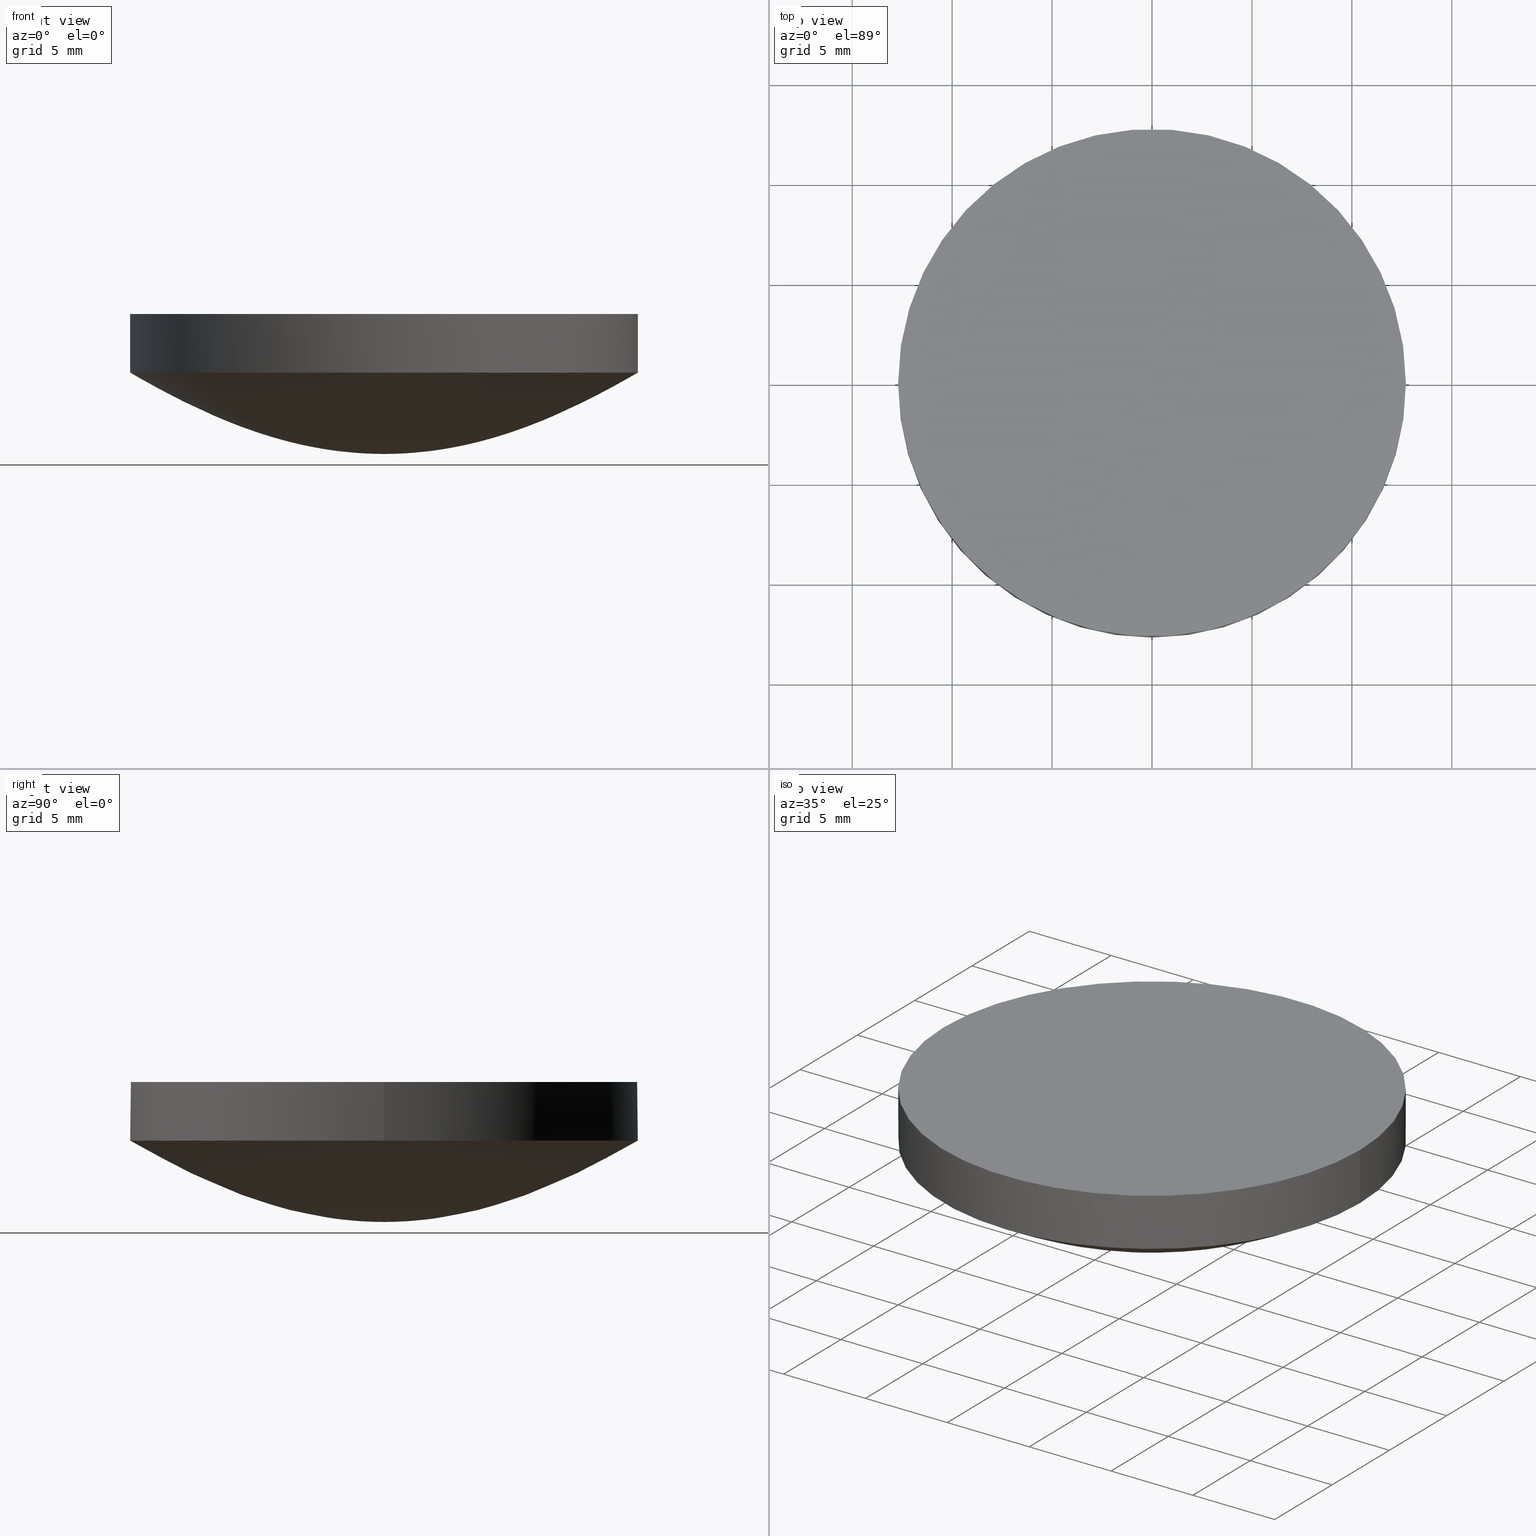
[diagram: canonical four-view strip — front | top / right | iso, engineering-drawing reading convention]
A machine part, canonical four-view strip (front | top / right | iso — engineering-drawing reading convention). The complete STEP part file that produces these views, byte-faithful:
ISO-10303-21;
HEADER;
FILE_DESCRIPTION (( 'STEP AP203' ),
    '1' );
FILE_NAME ('140006.STEP',
    '2021-03-15T05:15:34',
    ( '' ),
    ( '' ),
    'SwSTEP 2.0',
    'SolidWorks 2020',
    '' );
FILE_SCHEMA (( 'CONFIG_CONTROL_DESIGN' ));
ENDSEC;

DATA;
#1 = CARTESIAN_POINT ( 'NONE',  ( 0.000000000000000000, 12.00479254064729950, 3.667064022752589914 ) ) ;
#2 = AXIS2_PLACEMENT_3D ( 'NONE', #307, #428, #301 ) ;
#3 = CARTESIAN_POINT ( 'NONE',  ( 0.000000000000000000, 3.533405957217320648, 0.3344205416368840611 ) ) ;
#4 = CARTESIAN_POINT ( 'NONE',  ( 0.000000000000000000, 11.12882161848590101, 3.181104374964820014 ) ) ;
#5 = CARTESIAN_POINT ( 'NONE',  ( 7.594301245238770370, -1.395050506761360116E-15, 1.533470957631930087 ) ) ;
#6 = CARTESIAN_POINT ( 'NONE',  ( -12.00479254064729950, 12.00479254064729950, 3.667064022752589914 ) ) ;
#7 = CARTESIAN_POINT ( 'NONE',  ( 6.711633172175790030, -6.711633172175790030, 1.203886913266370096 ) ) ;
#8 = CARTESIAN_POINT ( 'NONE',  ( -9.181737509768350236, 5.622192725974499850E-16, 2.214785189956430145 ) ) ;
#9 = CARTESIAN_POINT ( 'NONE',  ( -6.006055148341420846, 3.677648106459400720E-16, 0.9667882177834620228 ) ) ;
#10 = CARTESIAN_POINT ( 'NONE',  ( -6.711633172175790030, 4.109690040678139960E-16, 1.203886913266370096 ) ) ;
#11 = CARTESIAN_POINT ( 'NONE',  ( 0.000000000000000000, 0.2648328616955860082, 0.000000000000000000 ) ) ;
#12 = LINE ( 'NONE', #178, #349 ) ;
#13 = VERTEX_POINT ( 'NONE', #352 ) ;
#14 = ORIENTED_EDGE ( 'NONE', *, *, #214, .F. ) ;
#15 = CARTESIAN_POINT ( 'NONE',  ( -2.827385974584470052, 1.731274591864490094E-16, 0.2123206717078350014 ) ) ;
#16 = ORIENTED_EDGE ( 'NONE', *, *, #172, .F. ) ;
#17 = CARTESIAN_POINT ( 'NONE',  ( -1.191719837553290114E-16, -0.9731130954516921117, 0.01543048580902020225 ) ) ;
#18 = CARTESIAN_POINT ( 'NONE',  ( 0.000000000000000000, 4.417048690703129665, 0.5241299113884619887 ) ) ;
#19 = COORDINATED_UNIVERSAL_TIME_OFFSET ( 8, 0, .AHEAD. ) ;
#20 = CC_DESIGN_APPROVAL ( #251, ( #425 ) ) ;
#21 = VERTEX_POINT ( 'NONE', #272 ) ;
#22 = CARTESIAN_POINT ( 'NONE',  ( -6.273697908756820634E-16, -5.122863108877440119, 0.7050934592128860201 ) ) ;
#23 = COORDINATED_UNIVERSAL_TIME_OFFSET ( 8, 0, .AHEAD. ) ;
#24 = DIRECTION ( 'NONE',  ( 6.993530863780509846E-17, 4.890947394265059749E-33, -1.000000000000000000 ) ) ;
#25 = CARTESIAN_POINT ( 'NONE',  ( 6.711633172175790030, -1.232907012203440065E-15, 1.203886913266370096 ) ) ;
#26 = CARTESIAN_POINT ( 'NONE',  ( -3.243267163845330030E-17, -0.2648328616955860082, 0.000000000000000000 ) ) ;
#27 = DATE_TIME_ROLE ( 'creation_date' ) ;
#28 = CARTESIAN_POINT ( 'NONE',  ( -1.555301434917141588E-15, -12.70000000000000462, 4.070440747888570243 ) ) ;
#29 = CARTESIAN_POINT ( 'NONE',  ( -8.219380081356279919E-16, -6.711633172175790030, 1.203886913266370096 ) ) ;
#30 = CARTESIAN_POINT ( 'NONE',  ( 9.886807867845659459, 9.886807867845650577, 2.551412349714330396 ) ) ;
#31 = APPROVAL_PERSON_ORGANIZATION ( #313, #177, #480 ) ;
#32 = DIRECTION ( 'NONE',  ( 1.000000000000000000, 0.000000000000000000, 6.829619984160658046E-17 ) ) ;
#33 = CARTESIAN_POINT ( 'NONE',  ( 0.000000000000000000, 6.006055148341420846, 0.9667882177834620228 ) ) ;
#34 = CARTESIAN_POINT ( 'NONE',  ( 0.000000000000000000, 0.000000000000000000, 0.000000000000000000 ) ) ;
#35 = CARTESIAN_POINT ( 'NONE',  ( -12.00479254064729950, 7.350815379665869921E-16, 3.667064022752589914 ) ) ;
#36 = CARTESIAN_POINT ( 'NONE',  ( 0.000000000000000000, 3.533405957217320648, 0.3344205416368840611 ) ) ;
#37 = CARTESIAN_POINT ( 'NONE',  ( 0.000000000000000000, 1.855821823687519911, 0.08601257208149051814 ) ) ;
#38 = CARTESIAN_POINT ( 'NONE',  ( -1.191719837553290114E-16, -0.9731130954516921117, 0.01543048580902020225 ) ) ;
#39 = CARTESIAN_POINT ( 'NONE',  ( -6.711633172175790030, 4.109690040678139960E-16, 1.203886913266370096 ) ) ;
#40 = CARTESIAN_POINT ( 'NONE',  ( 11.12882161848590101, -2.044331366004090146E-15, 3.181104374964820014 ) ) ;
#41 = CARTESIAN_POINT ( 'NONE',  ( 0.000000000000000000, 7.594301245238770370, 1.533470957631930087 ) ) ;
#42 = ADVANCED_FACE ( 'NONE', ( #358 ), #117, .T. ) ;
#43 = CARTESIAN_POINT ( 'NONE',  ( -11.12882161848589924, -11.12882161848589924, 3.181104374964820014 ) ) ;
#44 = CARTESIAN_POINT ( 'NONE',  ( -2.272726256166720090E-16, -1.855821823687519911, 0.08601257208149051814 ) ) ;
#45 = CARTESIAN_POINT ( 'NONE',  ( 0.000000000000000000, 6.711633172175790030, 1.203886913266370096 ) ) ;
#46 = CARTESIAN_POINT ( 'NONE',  ( -1.124438545194899970E-15, -9.181737509768350236, 2.214785189956430145 ) ) ;
#47 = CARTESIAN_POINT ( 'NONE',  ( -8.219380081356279919E-16, -6.711633172175790030, 1.203886913266370096 ) ) ;
#48 = PRODUCT_RELATED_PRODUCT_CATEGORY ( 'detail', '', ( #406 ) ) ;
#49 = CARTESIAN_POINT ( 'NONE',  ( -8.299626648234200488, -8.299626648234200488, 1.822880464037990311 ) ) ;
#50 = CARTESIAN_POINT ( 'NONE',  ( -9.886807867845659459, -9.886807867845650577, 2.551412349714330396 ) ) ;
#51 = CARTESIAN_POINT ( 'NONE',  ( -0.2648328616955860082, 1.621633581922660085E-17, 0.000000000000000000 ) ) ;
#52 = CARTESIAN_POINT ( 'NONE',  ( 0.000000000000000000, 0.000000000000000000, 0.000000000000000000 ) ) ;
#53 = ORIENTED_EDGE ( 'NONE', *, *, #519, .T. ) ;
#54 =( GEOMETRIC_REPRESENTATION_CONTEXT ( 3 ) GLOBAL_UNCERTAINTY_ASSIGNED_CONTEXT ( ( #460 ) ) GLOBAL_UNIT_ASSIGNED_CONTEXT ( ( #260, #476, #387 ) ) REPRESENTATION_CONTEXT ( 'NONE', 'WORKASPACE' ) );
#55 = ORIENTED_EDGE ( 'NONE', *, *, #509, .T. ) ;
#56 = CARTESIAN_POINT ( 'NONE',  ( 3.533405957217320204, -3.533405957217320204, 0.3344205416368839501 ) ) ;
#57 = DIRECTION ( 'NONE',  ( 0.000000000000000000, 0.000000000000000000, 1.000000000000000000 ) ) ;
#58 = EDGE_LOOP ( 'NONE', ( #520, #55, #438, #217, #61 ) ) ;
#59 = CARTESIAN_POINT ( 'NONE',  ( -3.533405957217320204, -3.533405957217320204, 0.3344205416368839501 ) ) ;
#60 = CARTESIAN_POINT ( 'NONE',  ( -0.2648328616955859527, -0.2648328616955859527, 0.000000000000000000 ) ) ;
#61 = ORIENTED_EDGE ( 'NONE', *, *, #113, .F. ) ;
#62 = CARTESIAN_POINT ( 'NONE',  ( -1.855821823687519911, 1.855821823687519911, 0.08601257208149050426 ) ) ;
#63 = DATE_AND_TIME ( #150, #498 ) ;
#64 = B_SPLINE_CURVE_WITH_KNOTS ( 'NONE', 3,
 ( #536, #314, #486, #230, #151, #444, #68, #108, #311, #414, #241, #361, #451, #441, #38, #490, #112 ),
 .UNSPECIFIED., .F., .F.,
 ( 4, 1, 1, 1, 1, 1, 1, 1, 1, 1, 1, 1, 1, 1, 4 ),
 ( 0.000000000000000000, 0.1786505433435620072, 0.2225930362310299948, 0.3094249444054230080, 0.3523143596923489773, 0.4370447528922249969, 0.4788857308051759909, 0.5616114302726280538, 0.6024961518271300109, 0.6834766971770069865, 0.7235725209723830043, 0.8032027717589680371, 0.8427371987501770523, 0.9411358128706930337, 1.000000000000000000 ),
 .UNSPECIFIED. ) ;
#65 = DIRECTION ( 'NONE',  ( -6.993530863780509846E-17, -4.890947394265059749E-33, 1.000000000000000000 ) ) ;
#66 = CARTESIAN_POINT ( 'NONE',  ( 5.122863108877440119, -9.410546863135229472E-16, 0.7050934592128860201 ) ) ;
#67 = CALENDAR_DATE ( 2021, 15, 3 ) ;
#68 = CARTESIAN_POINT ( 'NONE',  ( -9.300336711742419180E-16, -7.594301245238770370, 1.533470957631930087 ) ) ;
#69 = CARTESIAN_POINT ( 'NONE',  ( 0.000000000000000000, 4.417048690703129665, 0.5241299113884619887 ) ) ;
#70 = CARTESIAN_POINT ( 'NONE',  ( 0.9731130954516928888, 0.9731130954516920006, 0.01543048580902020052 ) ) ;
#71 = CYLINDRICAL_SURFACE ( 'NONE', #523, 12.69999999999999929 ) ;
#72 = CARTESIAN_POINT ( 'NONE',  ( -7.594301245238770370, 4.650168355871209590E-16, 1.533470957631930087 ) ) ;
#73 = EDGE_CURVE ( 'NONE', #13, #524, #372, .T. ) ;
#74 = CARTESIAN_POINT ( 'NONE',  ( 0.000000000000000000, 0.000000000000000000, 0.000000000000000000 ) ) ;
#75 = LOCAL_TIME ( 13, 15, 34.00000000000000000, #19 ) ;
#76 = CARTESIAN_POINT ( 'NONE',  ( 12.69999999999999929, -2.332952152375710015E-15, 4.070440747888570243 ) ) ;
#77 = CARTESIAN_POINT ( 'NONE',  ( 4.417048690703129665, -8.113986811121390347E-16, 0.5241299113884619887 ) ) ;
#78 = CARTESIAN_POINT ( 'NONE',  ( -11.12882161848590101, 6.814437886680300486E-16, 3.181104374964820014 ) ) ;
#79 = CARTESIAN_POINT ( 'NONE',  ( 1.734723475976807094E-15, -1.345898117247522881E-15, 4.070440747888570243 ) ) ;
#80 = CARTESIAN_POINT ( 'NONE',  ( -4.327174295594380739E-16, -3.533405957217320648, 0.3344205416368840611 ) ) ;
#81 = CARTESIAN_POINT ( 'NONE',  ( 0.000000000000000000, 9.181737509768350236, 2.214785189956430145 ) ) ;
#82 = CARTESIAN_POINT ( 'NONE',  ( 9.181737509768350236, -1.686657817792350152E-15, 2.214785189956430145 ) ) ;
#83 = CARTESIAN_POINT ( 'NONE',  ( 0.000000000000000000, 11.12882161848590101, 3.181104374964820014 ) ) ;
#84 = CARTESIAN_POINT ( 'NONE',  ( -6.711633172175790030, 6.711633172175790030, 1.203886913266370096 ) ) ;
#85 = AXIS2_PLACEMENT_3D ( 'NONE', #408, #24, #32 ) ;
#86 = CARTESIAN_POINT ( 'NONE',  ( -1.210784760914209971E-15, -9.886807867845659459, 2.551412349714329952 ) ) ;
#87 = CARTESIAN_POINT ( 'NONE',  ( -9.886807867845659459, 6.053923804571030135E-16, 2.551412349714329952 ) ) ;
#88 = CARTESIAN_POINT ( 'NONE',  ( 1.855821823687519911, 1.855821823687519911, 0.08601257208149050426 ) ) ;
#89 = CARTESIAN_POINT ( 'NONE',  ( 0.000000000000000000, 6.006055148341420846, 0.9667882177834620228 ) ) ;
#90 = CARTESIAN_POINT ( 'NONE',  ( 9.181737509768350236, -9.181737509768350236, 2.214785189956430145 ) ) ;
#91 = CARTESIAN_POINT ( 'NONE',  ( 0.000000000000000000, 0.000000000000000000, 0.000000000000000000 ) ) ;
#92 = CARTESIAN_POINT ( 'NONE',  ( 2.827385974584470052, -2.827385974584470052, 0.2123206717078350014 ) ) ;
#93 = CARTESIAN_POINT ( 'NONE',  ( 0.000000000000000000, 0.000000000000000000, 0.000000000000000000 ) ) ;
#94 = VERTEX_POINT ( 'NONE', #28 ) ;
#95 = DIRECTION ( 'NONE',  ( 1.000000000000000000, 0.000000000000000000, -0.000000000000000000 ) ) ;
#96 = CARTESIAN_POINT ( 'NONE',  ( 0.000000000000000000, 0.000000000000000000, 0.000000000000000000 ) ) ;
#97 = CC_DESIGN_APPROVAL ( #177, ( #268 ) ) ;
#98 = ORIENTED_EDGE ( 'NONE', *, *, #484, .T. ) ;
#99 = PRODUCT_DEFINITION_SHAPE ( 'NONE', 'NONE',  #268 ) ;
#100 = CARTESIAN_POINT ( 'NONE',  ( -5.122863108877440119, 3.136848954378410317E-16, 0.7050934592128860201 ) ) ;
#101 = CARTESIAN_POINT ( 'NONE',  ( -0.9731130954516921117, 5.958599187766440708E-17, 0.01543048580902020225 ) ) ;
#102 = CARTESIAN_POINT ( 'NONE',  ( 0.000000000000000000, 0.000000000000000000, 0.000000000000000000 ) ) ;
#103 = CARTESIAN_POINT ( 'NONE',  ( -1.855821823687519911, -1.855821823687519911, 0.08601257208149050426 ) ) ;
#104 = APPROVAL_ROLE ( '' ) ;
#105 = CARTESIAN_POINT ( 'NONE',  ( 8.881784197001250351E-16, -8.881784197001250351E-16, 4.070440747888570243 ) ) ;
#106 = CARTESIAN_POINT ( 'NONE',  ( 0.000000000000000000, 0.9731130954516921117, 0.01543048580902020225 ) ) ;
#107 = CALENDAR_DATE ( 2021, 15, 3 ) ;
#108 = CARTESIAN_POINT ( 'NONE',  ( -8.219380081356279919E-16, -6.711633172175790030, 1.203886913266370096 ) ) ;
#109 = CARTESIAN_POINT ( 'NONE',  ( -6.273697908756820634E-16, -5.122863108877440119, 0.7050934592128860201 ) ) ;
#110 = CARTESIAN_POINT ( 'NONE',  ( -5.122863108877440119, -5.122863108877440119, 0.7050934592128860201 ) ) ;
#111 = CARTESIAN_POINT ( 'NONE',  ( 0.9731130954516920006, -0.9731130954516928888, 0.01543048580902020052 ) ) ;
#112 = CARTESIAN_POINT ( 'NONE',  ( 0.000000000000000000, 0.000000000000000000, 0.000000000000000000 ) ) ;
#113 = EDGE_CURVE ( 'NONE', #524, #21, #305, .T. ) ;
#114 = CARTESIAN_POINT ( 'NONE',  ( 0.000000000000000000, 8.299626648234200488, 1.822880464037990089 ) ) ;
#115 = CARTESIAN_POINT ( 'NONE',  ( -0.9731130954516920006, -0.9731130954516920006, 0.01543048580902020052 ) ) ;
#116 = CARTESIAN_POINT ( 'NONE',  ( 0.000000000000000000, 12.00479254064729950, 3.667064022752589914 ) ) ;
#117 = CYLINDRICAL_SURFACE ( 'NONE', #514, 12.69999999999999929 ) ;
#118 = CARTESIAN_POINT ( 'NONE',  ( -4.417048690703129665, -4.417048690703129665, 0.5241299113884619887 ) ) ;
#119 = CARTESIAN_POINT ( 'NONE',  ( 12.00479254064729950, 12.00479254064729950, 3.667064022752589914 ) ) ;
#120 = DATE_AND_TIME ( #67, #75 ) ;
#121 = ORGANIZATION ( 'δָ��', 'δָ��', '' ) ;
#122 = CC_DESIGN_SECURITY_CLASSIFICATION ( #425, ( #379 ) ) ;
#123 = CARTESIAN_POINT ( 'NONE',  ( -12.69999999999999929, 7.776507174585690191E-16, 4.070440747888570243 ) ) ;
#124 = CARTESIAN_POINT ( 'NONE',  ( 6.711633172175790030, -6.711633172175790030, 1.203886913266370096 ) ) ;
#125 = CARTESIAN_POINT ( 'NONE',  ( 12.69999999999999929, -2.332952152375710015E-15, 4.070440747888570243 ) ) ;
#126 = CARTESIAN_POINT ( 'NONE',  ( 0.000000000000000000, 9.886807867845659459, 2.551412349714329952 ) ) ;
#127 = CARTESIAN_POINT ( 'NONE',  ( 6.711633172175790030, 6.711633172175790030, 1.203886913266370096 ) ) ;
#128 = CARTESIAN_POINT ( 'NONE',  ( -9.886807867845659459, 9.886807867845659459, 2.551412349714330396 ) ) ;
#129 = CARTESIAN_POINT ( 'NONE',  ( 0.000000000000000000, 7.594301245238770370, 1.533470957631930087 ) ) ;
#130 = CARTESIAN_POINT ( 'NONE',  ( 0.000000000000000000, 0.000000000000000000, 0.000000000000000000 ) ) ;
#131 = CARTESIAN_POINT ( 'NONE',  ( -1.855821823687519911, -1.855821823687519911, 0.08601257208149050426 ) ) ;
#132 = CARTESIAN_POINT ( 'NONE',  ( -9.181737509768350236, 9.181737509768350236, 2.214785189956430145 ) ) ;
#133 = CARTESIAN_POINT ( 'NONE',  ( 6.006055148341419958, -6.006055148341419958, 0.9667882177834622448 ) ) ;
#134 = CARTESIAN_POINT ( 'NONE',  ( 0.000000000000000000, 8.299626648234200488, 1.822880464037990089 ) ) ;
#135 = CARTESIAN_POINT ( 'NONE',  ( 1.734723475976807094E-15, -1.345898117247522881E-15, 4.070440747888570243 ) ) ;
#136 = CARTESIAN_POINT ( 'NONE',  ( -0.9731130954516920006, 0.9731130954516920006, 0.01543048580902020052 ) ) ;
#137 = CARTESIAN_POINT ( 'NONE',  ( -3.851859888774471706E-31, 12.70000000000000284, 4.070440747888570243 ) ) ;
#138 = CARTESIAN_POINT ( 'NONE',  ( 0.000000000000000000, 0.2648328616955860082, 0.000000000000000000 ) ) ;
#139 = ORIENTED_EDGE ( 'NONE', *, *, #519, .F. ) ;
#140 = CARTESIAN_POINT ( 'NONE',  ( 12.70000000000000107, -8.881784197001250351E-16, 4.070440747888571131 ) ) ;
#141 = ORIENTED_EDGE ( 'NONE', *, *, #331, .F. ) ;
#142 = CC_DESIGN_PERSON_AND_ORGANIZATION_ASSIGNMENT ( #357, #496, ( #425 ) ) ;
#143 = CARTESIAN_POINT ( 'NONE',  ( 1.855821823687519911, 1.855821823687519911, 0.08601257208149050426 ) ) ;
#144 = CARTESIAN_POINT ( 'NONE',  ( 0.000000000000000000, 0.000000000000000000, 0.000000000000000000 ) ) ;
#145 = EDGE_LOOP ( 'NONE', ( #16, #262, #258, #304 ) ) ;
#146 = CARTESIAN_POINT ( 'NONE',  ( -3.533405957217320204, 3.533405957217320204, 0.3344205416368839501 ) ) ;
#147 = APPROVAL_DATE_TIME ( #188, #177 ) ;
#148 = VERTEX_POINT ( 'NONE', #156 ) ;
#149 = CARTESIAN_POINT ( 'NONE',  ( -0.2648328616955860082, 1.621633581922660085E-17, 0.000000000000000000 ) ) ;
#150 = CALENDAR_DATE ( 2021, 15, 3 ) ;
#151 = CARTESIAN_POINT ( 'NONE',  ( -1.124438545194899970E-15, -9.181737509768350236, 2.214785189956430145 ) ) ;
#152 = CARTESIAN_POINT ( 'NONE',  ( -5.122863108877440119, -5.122863108877440119, 0.7050934592128860201 ) ) ;
#153 = CARTESIAN_POINT ( 'NONE',  ( 3.533405957217320648, -6.490761443391570122E-16, 0.3344205416368840611 ) ) ;
#154 = AXIS2_PLACEMENT_3D ( 'NONE', #135, #341, #516 ) ;
#155 = COORDINATED_UNIVERSAL_TIME_OFFSET ( 8, 0, .AHEAD. ) ;
#156 = CARTESIAN_POINT ( 'NONE',  ( -12.69999999999999929, 6.671230152170134961E-16, 7.000000000000000000 ) ) ;
#157 = CARTESIAN_POINT ( 'NONE',  ( 0.000000000000000000, 8.299626648234200488, 1.822880464037990089 ) ) ;
#158 = CARTESIAN_POINT ( 'NONE',  ( -12.69999999999999929, 12.69999999999999929, 4.070440747888570243 ) ) ;
#159 = CARTESIAN_POINT ( 'NONE',  ( -12.69999999999999929, 12.69999999999999929, 4.070440747888570243 ) ) ;
#160 = CARTESIAN_POINT ( 'NONE',  ( 8.299626648234200488, 8.299626648234200488, 1.822880464037990311 ) ) ;
#161 = CARTESIAN_POINT ( 'NONE',  ( 0.000000000000000000, 0.000000000000000000, 0.000000000000000000 ) ) ;
#162 = PERSON_AND_ORGANIZATION ( #513, #121 ) ;
#163 = CARTESIAN_POINT ( 'NONE',  ( 12.00479254064729950, 12.00479254064729950, 3.667064022752589914 ) ) ;
#164 = CARTESIAN_POINT ( 'NONE',  ( 8.299626648234200488, -1.524616681331709934E-15, 1.822880464037990089 ) ) ;
#165 = CARTESIAN_POINT ( 'NONE',  ( 0.000000000000000000, 9.181737509768350236, 2.214785189956430145 ) ) ;
#166 = CARTESIAN_POINT ( 'NONE',  ( 7.594301245238770370, 7.594301245238770370, 1.533470957631930309 ) ) ;
#167 = CARTESIAN_POINT ( 'NONE',  ( -11.12882161848589924, 11.12882161848589924, 3.181104374964820014 ) ) ;
#168 = CARTESIAN_POINT ( 'NONE',  ( 0.9731130954516921117, -1.787579756329929994E-16, 0.01543048580902020225 ) ) ;
#169 = CARTESIAN_POINT ( 'NONE',  ( -8.299626648234200488, 5.082055604439041003E-16, 1.822880464037990089 ) ) ;
#170 = CARTESIAN_POINT ( 'NONE',  ( 0.000000000000000000, 3.533405957217320648, 0.3344205416368840611 ) ) ;
#171 = CARTESIAN_POINT ( 'NONE',  ( 0.000000000000000000, 6.006055148341420846, 0.9667882177834620228 ) ) ;
#172 = EDGE_CURVE ( 'NONE', #94, #436, #64, .T. ) ;
#173 = CARTESIAN_POINT ( 'NONE',  ( -6.006055148341419958, -6.006055148341419958, 0.9667882177834622448 ) ) ;
#174 = CARTESIAN_POINT ( 'NONE',  ( -7.594301245238770370, 7.594301245238770370, 1.533470957631930309 ) ) ;
#175 = PERSON_AND_ORGANIZATION ( #513, #121 ) ;
#176 = CARTESIAN_POINT ( 'NONE',  ( 0.000000000000000000, 0.9731130954516921117, 0.01543048580902020225 ) ) ;
#177 = APPROVAL ( #233, 'δָ��' ) ;
#178 = CARTESIAN_POINT ( 'NONE',  ( -12.69999999999999751, 6.671230152170134961E-16, 4.070440747888569355 ) ) ;
#179 = AXIS2_PLACEMENT_3D ( 'NONE', #279, #447, #456 ) ;
#180 = CARTESIAN_POINT ( 'NONE',  ( -2.827385974584470052, -2.827385974584470052, 0.2123206717078350014 ) ) ;
#181 = CARTESIAN_POINT ( 'NONE',  ( 0.000000000000000000, 0.9731130954516921117, 0.01543048580902020225 ) ) ;
#182 = CARTESIAN_POINT ( 'NONE',  ( -3.462549183728990048E-16, -2.827385974584470052, 0.2123206717078350014 ) ) ;
#183 = CARTESIAN_POINT ( 'NONE',  ( 0.2648328616955859527, -0.2648328616955859527, 0.000000000000000000 ) ) ;
#184 = CC_DESIGN_APPROVAL ( #471, ( #379 ) ) ;
#185 = CARTESIAN_POINT ( 'NONE',  ( 4.417048690703129665, 4.417048690703129665, 0.5241299113884619887 ) ) ;
#186 = APPROVAL_DATE_TIME ( #318, #471 ) ;
#187 = CARTESIAN_POINT ( 'NONE',  ( 0.9731130954516921117, -1.787579756329929994E-16, 0.01543048580902020225 ) ) ;
#188 = DATE_AND_TIME ( #107, #336 ) ;
#189 = CARTESIAN_POINT ( 'NONE',  ( 0.000000000000000000, 6.006055148341420846, 0.9667882177834620228 ) ) ;
#190 = CARTESIAN_POINT ( 'NONE',  ( 0.2648328616955859527, -0.2648328616955859527, 0.000000000000000000 ) ) ;
#191 = APPLICATION_PROTOCOL_DEFINITION ( 'international standard', 'config_control_design', 1994, #259 ) ;
#192 = DIRECTION ( 'NONE',  ( 1.000000000000000000, 0.000000000000000000, 6.829619984160658046E-17 ) ) ;
#193 = CARTESIAN_POINT ( 'NONE',  ( -7.355296212918801441E-16, -6.006055148341420846, 0.9667882177834620228 ) ) ;
#194 = CARTESIAN_POINT ( 'NONE',  ( 12.00479254064729950, -12.00479254064729950, 3.667064022752589914 ) ) ;
#195 = FACE_OUTER_BOUND ( 'NONE', #145, .T. ) ;
#196 = DESIGN_CONTEXT ( 'detailed design', #259, 'design' ) ;
#197 = CARTESIAN_POINT ( 'NONE',  ( -8.299626648234200488, 5.082055604439041003E-16, 1.822880464037990089 ) ) ;
#198 = CARTESIAN_POINT ( 'NONE',  ( 0.000000000000000000, 9.886807867845659459, 2.551412349714329952 ) ) ;
#199 = APPROVAL_STATUS ( 'not_yet_approved' ) ;
#200 = CARTESIAN_POINT ( 'NONE',  ( 0.000000000000000000, 12.00479254064729950, 3.667064022752589914 ) ) ;
#201 = CARTESIAN_POINT ( 'NONE',  ( -6.006055148341419958, 6.006055148341419958, 0.9667882177834622448 ) ) ;
#202 = CARTESIAN_POINT ( 'NONE',  ( 0.000000000000000000, 0.9731130954516921117, 0.01543048580902020225 ) ) ;
#203 = CARTESIAN_POINT ( 'NONE',  ( 8.881784197001250351E-16, -8.881784197001250351E-16, 4.070440747888570243 ) ) ;
#204 = CARTESIAN_POINT ( 'NONE',  ( 3.533405957217320648, -6.490761443391570122E-16, 0.3344205416368840611 ) ) ;
#205 = CARTESIAN_POINT ( 'NONE',  ( 0.000000000000000000, 0.000000000000000000, 0.000000000000000000 ) ) ;
#206 = CLOSED_SHELL ( 'NONE', ( #467, #229, #308, #42, #530 ) ) ;
#207 = CARTESIAN_POINT ( 'NONE',  ( 11.12882161848590101, -2.044331366004090146E-15, 3.181104374964820014 ) ) ;
#208 = CARTESIAN_POINT ( 'NONE',  ( 0.000000000000000000, 6.711633172175790030, 1.203886913266370096 ) ) ;
#209 = CARTESIAN_POINT ( 'NONE',  ( 9.886807867845659459, -1.816177141371310027E-15, 2.551412349714329952 ) ) ;
#210 = CARTESIAN_POINT ( 'NONE',  ( 9.181737509768350236, -9.181737509768350236, 2.214785189956430145 ) ) ;
#211 = CARTESIAN_POINT ( 'NONE',  ( -6.006055148341419958, 6.006055148341419958, 0.9667882177834622448 ) ) ;
#212 = CARTESIAN_POINT ( 'NONE',  ( 8.299626648234200488, -1.524616681331709934E-15, 1.822880464037990089 ) ) ;
#213 = CARTESIAN_POINT ( 'NONE',  ( 11.12882161848589924, 11.12882161848589924, 3.181104374964820014 ) ) ;
#214 = EDGE_CURVE ( 'NONE', #94, #13, #316, .T. ) ;
#215 = FACE_OUTER_BOUND ( 'NONE', #392, .T. ) ;
#216 = DIRECTION ( 'NONE',  ( 0.000000000000000000, 0.000000000000000000, 1.000000000000000000 ) ) ;
#217 = ORIENTED_EDGE ( 'NONE', *, *, #484, .F. ) ;
#218 = AXIS2_PLACEMENT_3D ( 'NONE', #261, #216, #95 ) ;
#219 = CARTESIAN_POINT ( 'NONE',  ( 0.000000000000000000, 1.855821823687519911, 0.08601257208149051814 ) ) ;
#220 = PLANE ( 'NONE',  #218 ) ;
#221 = CARTESIAN_POINT ( 'NONE',  ( 0.000000000000000000, 4.417048690703129665, 0.5241299113884619887 ) ) ;
#222 = CARTESIAN_POINT ( 'NONE',  ( 0.000000000000000000, 0.9731130954516921117, 0.01543048580902020225 ) ) ;
#223 = DIRECTION ( 'NONE',  ( 1.000000000000000000, 0.000000000000000000, 0.000000000000000000 ) ) ;
#224 = CARTESIAN_POINT ( 'NONE',  ( 2.827385974584470052, 2.827385974584470052, 0.2123206717078350014 ) ) ;
#225 = APPLICATION_PROTOCOL_DEFINITION ( 'international standard', 'config_control_design', 1994, #389 ) ;
#226 = CIRCLE ( 'NONE', #2, 12.69999999999999929 ) ;
#227 = LOCAL_TIME ( 13, 15, 34.00000000000000000, #483 ) ;
#228 = CARTESIAN_POINT ( 'NONE',  ( 0.000000000000000000, 5.122863108877440119, 0.7050934592128860201 ) ) ;
#229 = ADVANCED_FACE ( 'NONE', ( #234 ), #71, .T. ) ;
#230 = CARTESIAN_POINT ( 'NONE',  ( -1.210784760914209971E-15, -9.886807867845659459, 2.551412349714329952 ) ) ;
#231 = CARTESIAN_POINT ( 'NONE',  ( 6.006055148341420846, -1.103294431937820068E-15, 0.9667882177834620228 ) ) ;
#232 = CARTESIAN_POINT ( 'NONE',  ( 0.000000000000000000, 3.533405957217320648, 0.3344205416368840611 ) ) ;
#233 = APPROVAL_STATUS ( 'not_yet_approved' ) ;
#234 = FACE_OUTER_BOUND ( 'NONE', #58, .T. ) ;
#235 = CARTESIAN_POINT ( 'NONE',  ( 0.000000000000000000, 9.181737509768350236, 2.214785189956430145 ) ) ;
#236 = CARTESIAN_POINT ( 'NONE',  ( 0.2648328616955860082, -4.864900745767989807E-17, 0.000000000000000000 ) ) ;
#237 = DIRECTION ( 'NONE',  ( 1.000000000000000000, 0.000000000000000000, 6.829619984160658046E-17 ) ) ;
#238 = CARTESIAN_POINT ( 'NONE',  ( -5.122863108877440119, 3.136848954378410317E-16, 0.7050934592128860201 ) ) ;
#239 = CARTESIAN_POINT ( 'NONE',  ( 0.000000000000000000, 7.594301245238770370, 1.533470957631930087 ) ) ;
#240 = PERSON_AND_ORGANIZATION_ROLE ( 'creator' ) ;
#241 = CARTESIAN_POINT ( 'NONE',  ( -5.409324540747589949E-16, -4.417048690703129665, 0.5241299113884619887 ) ) ;
#242 =( BOUNDED_SURFACE ( )  B_SPLINE_SURFACE ( 3, 2, ( 
 ( #539, #159, #123, #322, #493, #368, #76, #411, #364 ),
 ( #200, #354, #35, #326, #532, #543, #497, #163, #1 ),
 ( #481, #427, #292, #424, #501, #294, #207, #213, #508 ),
 ( #466, #459, #87, #50, #297, #255, #209, #337, #126 ),
 ( #506, #132, #382, #329, #376, #90, #82, #335, #165 ),
 ( #134, #248, #169, #49, #288, #418, #212, #470, #253 ),
 ( #41, #174, #333, #423, #374, #380, #5, #504, #129 ),
 ( #463, #84, #10, #378, #47, #7, #250, #421, #45 ),
 ( #171, #211, #9, #173, #507, #133, #296, #469, #89 ),
 ( #254, #338, #100, #110, #22, #257, #66, #347, #228 ),
 ( #221, #356, #488, #525, #390, #317, #393, #185, #18 ),
 ( #351, #146, #274, #59, #309, #56, #153, #446, #232 ),
 ( #340, #478, #15, #482, #182, #437, #312, #224, #402 ),
 ( #479, #62, #266, #103, #521, #442, #267, #143, #512 ),
 ( #106, #136, #439, #397, #306, #353, #187, #70, #176 ),
 ( #531, #299, #149, #270, #26, #190, #236, #534, #11 ),
 ( #474, #93, #430, #161, #462, #541, #130, #244, #74 ) ),
 .UNSPECIFIED., .F., .T., .T. ) 
 B_SPLINE_SURFACE_WITH_KNOTS ( ( 4, 1, 1, 1, 1, 1, 1, 1, 1, 1, 1, 1, 1, 1, 4 ),
 ( 3, 2, 2, 2, 3 ),
 ( 0.000000000000000000, 0.1786505433435620072, 0.2225930362310299948, 0.3094249444054230080, 0.3523143596923489773, 0.4370447528922249969, 0.4788857308051759909, 0.5616114302726280538, 0.6024961518271300109, 0.6834766971770069865, 0.7235725209723830043, 0.8032027717589680371, 0.8427371987501770523, 0.9411358128706930337, 1.000000000000000000 ),
 ( 0.000000000000000000, 90.00000000000000000, 180.0000000000000000, 270.0000000000000000, 360.0000000000000000 ),
 .UNSPECIFIED. ) 
 GEOMETRIC_REPRESENTATION_ITEM ( )  RATIONAL_B_SPLINE_SURFACE ( (
 ( 1.000000000000000000, 0.7071067811865480168, 1.000000000000000000, 0.7071067811865480168, 1.000000000000000000, 0.7071067811865480168, 1.000000000000000000, 0.7071067811865480168, 1.000000000000000000),
 ( 1.000000000000000000, 0.7071067811865480168, 1.000000000000000000, 0.7071067811865480168, 1.000000000000000000, 0.7071067811865480168, 1.000000000000000000, 0.7071067811865480168, 1.000000000000000000),
 ( 1.000000000000000000, 0.7071067811865480168, 1.000000000000000000, 0.7071067811865480168, 1.000000000000000000, 0.7071067811865480168, 1.000000000000000000, 0.7071067811865480168, 1.000000000000000000),
 ( 1.000000000000000000, 0.7071067811865480168, 1.000000000000000000, 0.7071067811865480168, 1.000000000000000000, 0.7071067811865480168, 1.000000000000000000, 0.7071067811865480168, 1.000000000000000000),
 ( 1.000000000000000000, 0.7071067811865480168, 1.000000000000000000, 0.7071067811865480168, 1.000000000000000000, 0.7071067811865480168, 1.000000000000000000, 0.7071067811865480168, 1.000000000000000000),
 ( 1.000000000000000000, 0.7071067811865480168, 1.000000000000000000, 0.7071067811865480168, 1.000000000000000000, 0.7071067811865480168, 1.000000000000000000, 0.7071067811865480168, 1.000000000000000000),
 ( 1.000000000000000000, 0.7071067811865480168, 1.000000000000000000, 0.7071067811865480168, 1.000000000000000000, 0.7071067811865480168, 1.000000000000000000, 0.7071067811865480168, 1.000000000000000000),
 ( 1.000000000000000000, 0.7071067811865480168, 1.000000000000000000, 0.7071067811865480168, 1.000000000000000000, 0.7071067811865480168, 1.000000000000000000, 0.7071067811865480168, 1.000000000000000000),
 ( 1.000000000000000000, 0.7071067811865480168, 1.000000000000000000, 0.7071067811865480168, 1.000000000000000000, 0.7071067811865480168, 1.000000000000000000, 0.7071067811865480168, 1.000000000000000000),
 ( 1.000000000000000000, 0.7071067811865480168, 1.000000000000000000, 0.7071067811865480168, 1.000000000000000000, 0.7071067811865480168, 1.000000000000000000, 0.7071067811865480168, 1.000000000000000000),
 ( 1.000000000000000000, 0.7071067811865480168, 1.000000000000000000, 0.7071067811865480168, 1.000000000000000000, 0.7071067811865480168, 1.000000000000000000, 0.7071067811865480168, 1.000000000000000000),
 ( 1.000000000000000000, 0.7071067811865480168, 1.000000000000000000, 0.7071067811865480168, 1.000000000000000000, 0.7071067811865480168, 1.000000000000000000, 0.7071067811865480168, 1.000000000000000000),
 ( 1.000000000000000000, 0.7071067811865480168, 1.000000000000000000, 0.7071067811865480168, 1.000000000000000000, 0.7071067811865480168, 1.000000000000000000, 0.7071067811865480168, 1.000000000000000000),
 ( 1.000000000000000000, 0.7071067811865480168, 1.000000000000000000, 0.7071067811865480168, 1.000000000000000000, 0.7071067811865480168, 1.000000000000000000, 0.7071067811865480168, 1.000000000000000000),
 ( 1.000000000000000000, 0.7071067811865480168, 1.000000000000000000, 0.7071067811865480168, 1.000000000000000000, 0.7071067811865480168, 1.000000000000000000, 0.7071067811865480168, 1.000000000000000000),
 ( 1.000000000000000000, 0.7071067811865480168, 1.000000000000000000, 0.7071067811865480168, 1.000000000000000000, 0.7071067811865480168, 1.000000000000000000, 0.7071067811865480168, 1.000000000000000000),
 ( 1.000000000000000000, 0.7071067811865480168, 1.000000000000000000, 0.7071067811865480168, 1.000000000000000000, 0.7071067811865480168, 1.000000000000000000, 0.7071067811865480168, 1.000000000000000000) ) ) 
 REPRESENTATION_ITEM ( '' )  SURFACE ( )  );
#243 = CARTESIAN_POINT ( 'NONE',  ( 4.417048690703129665, 4.417048690703129665, 0.5241299113884619887 ) ) ;
#244 = CARTESIAN_POINT ( 'NONE',  ( 0.000000000000000000, 0.000000000000000000, 0.000000000000000000 ) ) ;
#245 = DIRECTION ( 'NONE',  ( -6.993530863780509846E-17, -4.890947394265059749E-33, 1.000000000000000000 ) ) ;
#246 = CARTESIAN_POINT ( 'NONE',  ( -6.006055148341419958, -6.006055148341419958, 0.9667882177834622448 ) ) ;
#247 = CARTESIAN_POINT ( 'NONE',  ( 11.12882161848589924, -11.12882161848589924, 3.181104374964820014 ) ) ;
#248 = CARTESIAN_POINT ( 'NONE',  ( -8.299626648234200488, 8.299626648234200488, 1.822880464037990311 ) ) ;
#249 = CARTESIAN_POINT ( 'NONE',  ( 0.000000000000000000, 12.69999999999999929, 4.070440747888570243 ) ) ;
#250 = CARTESIAN_POINT ( 'NONE',  ( 6.711633172175790030, -1.232907012203440065E-15, 1.203886913266370096 ) ) ;
#251 = APPROVAL ( #310, 'δָ��' ) ;
#252 = CARTESIAN_POINT ( 'NONE',  ( -9.181737509768350236, -9.181737509768350236, 2.214785189956430145 ) ) ;
#253 = CARTESIAN_POINT ( 'NONE',  ( 0.000000000000000000, 8.299626648234200488, 1.822880464037990089 ) ) ;
#254 = CARTESIAN_POINT ( 'NONE',  ( 0.000000000000000000, 5.122863108877440119, 0.7050934592128860201 ) ) ;
#255 = CARTESIAN_POINT ( 'NONE',  ( 9.886807867845650577, -9.886807867845659459, 2.551412349714330396 ) ) ;
#256 = CARTESIAN_POINT ( 'NONE',  ( 0.000000000000000000, 0.000000000000000000, 0.000000000000000000 ) ) ;
#257 = CARTESIAN_POINT ( 'NONE',  ( 5.122863108877440119, -5.122863108877440119, 0.7050934592128860201 ) ) ;
#258 = ORIENTED_EDGE ( 'NONE', *, *, #73, .T. ) ;
#259 = APPLICATION_CONTEXT ( 'configuration controlled 3d designs of mechanical parts and assemblies' ) ;
#260 =( LENGTH_UNIT ( ) NAMED_UNIT ( * ) SI_UNIT ( .MILLI., .METRE. ) );
#261 = CARTESIAN_POINT ( 'NONE',  ( 0.000000000000000000, 26.11199999999999832, 7.000000000000000000 ) ) ;
#262 = ORIENTED_EDGE ( 'NONE', *, *, #214, .T. ) ;
#263 = AXIS2_PLACEMENT_3D ( 'NONE', #472, #57, #223 ) ;
#264 = EDGE_CURVE ( 'NONE', #148, #528, #395, .T. ) ;
#265 = CARTESIAN_POINT ( 'NONE',  ( -0.2648328616955859527, 0.2648328616955859527, 0.000000000000000000 ) ) ;
#266 = CARTESIAN_POINT ( 'NONE',  ( -1.855821823687519911, 1.136363128083360045E-16, 0.08601257208149051814 ) ) ;
#267 = CARTESIAN_POINT ( 'NONE',  ( 1.855821823687519911, -3.409089384250079888E-16, 0.08601257208149051814 ) ) ;
#268 = PRODUCT_DEFINITION ( 'δ֪', '', #379, #196 ) ;
#269 = SECURITY_CLASSIFICATION_LEVEL ( 'unclassified' ) ;
#270 = CARTESIAN_POINT ( 'NONE',  ( -0.2648328616955859527, -0.2648328616955859527, 0.000000000000000000 ) ) ;
#271 = SHAPE_DEFINITION_REPRESENTATION ( #99, #527 ) ;
#272 = CARTESIAN_POINT ( 'NONE',  ( 12.70000000000000462, -8.881784197001248379E-16, 4.070440747888570243 ) ) ;
#273 = CARTESIAN_POINT ( 'NONE',  ( 5.122863108877440119, -9.410546863135229472E-16, 0.7050934592128860201 ) ) ;
#274 = CARTESIAN_POINT ( 'NONE',  ( -3.533405957217320648, 2.163587147797190369E-16, 0.3344205416368840611 ) ) ;
#275 = DIRECTION ( 'NONE',  ( -0.000000000000000000, -0.000000000000000000, -1.000000000000000000 ) ) ;
#276 = CARTESIAN_POINT ( 'NONE',  ( -5.122863108877440119, 5.122863108877440119, 0.7050934592128860201 ) ) ;
#277 = CARTESIAN_POINT ( 'NONE',  ( -9.181737509768350236, 9.181737509768350236, 2.214785189956430145 ) ) ;
#278 = CALENDAR_DATE ( 2021, 15, 3 ) ;
#279 = CARTESIAN_POINT ( 'NONE',  ( 1.734723475976807094E-15, -1.345898117247522881E-15, 4.070440747888570243 ) ) ;
#280 = CARTESIAN_POINT ( 'NONE',  ( -5.409324540747589949E-16, -4.417048690703129665, 0.5241299113884619887 ) ) ;
#281 = LOCAL_TIME ( 13, 15, 34.00000000000000000, #399 ) ;
#282 = CARTESIAN_POINT ( 'NONE',  ( 0.000000000000000000, 11.12882161848590101, 3.181104374964820014 ) ) ;
#283 = CARTESIAN_POINT ( 'NONE',  ( 0.9731130954516928888, 0.9731130954516920006, 0.01543048580902020052 ) ) ;
#284 = PERSON_AND_ORGANIZATION ( #513, #121 ) ;
#285 = CARTESIAN_POINT ( 'NONE',  ( 1.734723475976807094E-15, -1.345898117247522881E-15, 4.070440747888570243 ) ) ;
#286 = CARTESIAN_POINT ( 'NONE',  ( 6.006055148341419958, 6.006055148341419958, 0.9667882177834622448 ) ) ;
#287 = CARTESIAN_POINT ( 'NONE',  ( -1.362887577336060097E-15, -11.12882161848590101, 3.181104374964820014 ) ) ;
#288 = CARTESIAN_POINT ( 'NONE',  ( -1.016411120887809976E-15, -8.299626648234200488, 1.822880464037990089 ) ) ;
#289 = CARTESIAN_POINT ( 'NONE',  ( -9.300336711742419180E-16, -7.594301245238770370, 1.533470957631930087 ) ) ;
#290 = CARTESIAN_POINT ( 'NONE',  ( 0.000000000000000000, 9.886807867845659459, 2.551412349714329952 ) ) ;
#291 = CC_DESIGN_PERSON_AND_ORGANIZATION_ASSIGNMENT ( #443, #526, ( #379 ) ) ;
#292 = CARTESIAN_POINT ( 'NONE',  ( -11.12882161848590101, 6.814437886680300486E-16, 3.181104374964820014 ) ) ;
#293 = CARTESIAN_POINT ( 'NONE',  ( 12.69999999999999929, 12.69999999999999929, 4.070440747888570243 ) ) ;
#294 = CARTESIAN_POINT ( 'NONE',  ( 11.12882161848589924, -11.12882161848589924, 3.181104374964820014 ) ) ;
#295 =( BOUNDED_SURFACE ( )  B_SPLINE_SURFACE ( 3, 2, ( 
 ( #249, #158, #458, #363, #503, #500, #125, #293, #454 ),
 ( #449, #6, #464, #419, #325, #194, #495, #119, #332 ),
 ( #282, #167, #78, #43, #287, #247, #40, #373, #4 ),
 ( #290, #128, #375, #360, #86, #407, #538, #30, #321 ),
 ( #492, #277, #8, #252, #46, #210, #422, #377, #235 ),
 ( #114, #330, #197, #320, #405, #537, #164, #160, #157 ),
 ( #359, #502, #72, #362, #289, #401, #448, #166, #533 ),
 ( #461, #315, #39, #487, #29, #124, #25, #127, #499 ),
 ( #33, #201, #355, #246, #193, #540, #231, #286, #189 ),
 ( #457, #276, #238, #152, #109, #491, #273, #409, #445 ),
 ( #69, #324, #494, #118, #280, #452, #77, #243, #412 ),
 ( #36, #365, #544, #327, #80, #415, #204, #370, #3 ),
 ( #473, #433, #383, #180, #426, #92, #343, #511, #381 ),
 ( #219, #420, #367, #131, #44, #465, #468, #88, #417 ),
 ( #222, #398, #101, #115, #17, #111, #168, #283, #181 ),
 ( #345, #265, #51, #60, #348, #183, #302, #298, #138 ),
 ( #144, #102, #52, #518, #339, #91, #344, #256, #96 ) ),
 .UNSPECIFIED., .F., .T., .F. ) 
 B_SPLINE_SURFACE_WITH_KNOTS ( ( 4, 1, 1, 1, 1, 1, 1, 1, 1, 1, 1, 1, 1, 1, 4 ),
 ( 3, 2, 2, 2, 3 ),
 ( 0.000000000000000000, 0.1786505433435620072, 0.2225930362310299948, 0.3094249444054230080, 0.3523143596923489773, 0.4370447528922249969, 0.4788857308051759909, 0.5616114302726280538, 0.6024961518271300109, 0.6834766971770069865, 0.7235725209723830043, 0.8032027717589680371, 0.8427371987501770523, 0.9411358128706930337, 1.000000000000000000 ),
 ( 0.000000000000000000, 90.00000000000000000, 180.0000000000000000, 270.0000000000000000, 360.0000000000000000 ),
 .UNSPECIFIED. ) 
 GEOMETRIC_REPRESENTATION_ITEM ( )  RATIONAL_B_SPLINE_SURFACE ( (
 ( 1.000000000000000000, 0.7071067811865480168, 1.000000000000000000, 0.7071067811865480168, 1.000000000000000000, 0.7071067811865480168, 1.000000000000000000, 0.7071067811865480168, 1.000000000000000000),
 ( 1.000000000000000000, 0.7071067811865480168, 1.000000000000000000, 0.7071067811865480168, 1.000000000000000000, 0.7071067811865480168, 1.000000000000000000, 0.7071067811865480168, 1.000000000000000000),
 ( 1.000000000000000000, 0.7071067811865480168, 1.000000000000000000, 0.7071067811865480168, 1.000000000000000000, 0.7071067811865480168, 1.000000000000000000, 0.7071067811865480168, 1.000000000000000000),
 ( 1.000000000000000000, 0.7071067811865480168, 1.000000000000000000, 0.7071067811865480168, 1.000000000000000000, 0.7071067811865480168, 1.000000000000000000, 0.7071067811865480168, 1.000000000000000000),
 ( 1.000000000000000000, 0.7071067811865480168, 1.000000000000000000, 0.7071067811865480168, 1.000000000000000000, 0.7071067811865480168, 1.000000000000000000, 0.7071067811865480168, 1.000000000000000000),
 ( 1.000000000000000000, 0.7071067811865480168, 1.000000000000000000, 0.7071067811865480168, 1.000000000000000000, 0.7071067811865480168, 1.000000000000000000, 0.7071067811865480168, 1.000000000000000000),
 ( 1.000000000000000000, 0.7071067811865480168, 1.000000000000000000, 0.7071067811865480168, 1.000000000000000000, 0.7071067811865480168, 1.000000000000000000, 0.7071067811865480168, 1.000000000000000000),
 ( 1.000000000000000000, 0.7071067811865480168, 1.000000000000000000, 0.7071067811865480168, 1.000000000000000000, 0.7071067811865480168, 1.000000000000000000, 0.7071067811865480168, 1.000000000000000000),
 ( 1.000000000000000000, 0.7071067811865480168, 1.000000000000000000, 0.7071067811865480168, 1.000000000000000000, 0.7071067811865480168, 1.000000000000000000, 0.7071067811865480168, 1.000000000000000000),
 ( 1.000000000000000000, 0.7071067811865480168, 1.000000000000000000, 0.7071067811865480168, 1.000000000000000000, 0.7071067811865480168, 1.000000000000000000, 0.7071067811865480168, 1.000000000000000000),
 ( 1.000000000000000000, 0.7071067811865480168, 1.000000000000000000, 0.7071067811865480168, 1.000000000000000000, 0.7071067811865480168, 1.000000000000000000, 0.7071067811865480168, 1.000000000000000000),
 ( 1.000000000000000000, 0.7071067811865480168, 1.000000000000000000, 0.7071067811865480168, 1.000000000000000000, 0.7071067811865480168, 1.000000000000000000, 0.7071067811865480168, 1.000000000000000000),
 ( 1.000000000000000000, 0.7071067811865480168, 1.000000000000000000, 0.7071067811865480168, 1.000000000000000000, 0.7071067811865480168, 1.000000000000000000, 0.7071067811865480168, 1.000000000000000000),
 ( 1.000000000000000000, 0.7071067811865480168, 1.000000000000000000, 0.7071067811865480168, 1.000000000000000000, 0.7071067811865480168, 1.000000000000000000, 0.7071067811865480168, 1.000000000000000000),
 ( 1.000000000000000000, 0.7071067811865480168, 1.000000000000000000, 0.7071067811865480168, 1.000000000000000000, 0.7071067811865480168, 1.000000000000000000, 0.7071067811865480168, 1.000000000000000000),
 ( 1.000000000000000000, 0.7071067811865480168, 1.000000000000000000, 0.7071067811865480168, 1.000000000000000000, 0.7071067811865480168, 1.000000000000000000, 0.7071067811865480168, 1.000000000000000000),
 ( 1.000000000000000000, 0.7071067811865480168, 1.000000000000000000, 0.7071067811865480168, 1.000000000000000000, 0.7071067811865480168, 1.000000000000000000, 0.7071067811865480168, 1.000000000000000000) ) ) 
 REPRESENTATION_ITEM ( '' )  SURFACE ( )  );
#296 = CARTESIAN_POINT ( 'NONE',  ( 6.006055148341420846, -1.103294431937820068E-15, 0.9667882177834620228 ) ) ;
#297 = CARTESIAN_POINT ( 'NONE',  ( -1.210784760914209971E-15, -9.886807867845659459, 2.551412349714329952 ) ) ;
#298 = CARTESIAN_POINT ( 'NONE',  ( 0.2648328616955859527, 0.2648328616955859527, 0.000000000000000000 ) ) ;
#299 = CARTESIAN_POINT ( 'NONE',  ( -0.2648328616955859527, 0.2648328616955859527, 0.000000000000000000 ) ) ;
#300 = APPROVAL_PERSON_ORGANIZATION ( #162, #251, #455 ) ;
#301 = DIRECTION ( 'NONE',  ( 1.000000000000000000, 0.000000000000000000, 6.829619984160658046E-17 ) ) ;
#302 = CARTESIAN_POINT ( 'NONE',  ( 0.2648328616955860082, -4.864900745767989807E-17, 0.000000000000000000 ) ) ;
#303 = ORIENTED_EDGE ( 'NONE', *, *, #172, .T. ) ;
#304 = ORIENTED_EDGE ( 'NONE', *, *, #331, .T. ) ;
#305 = CIRCLE ( 'NONE', #485, 12.70000000000000284 ) ;
#306 = CARTESIAN_POINT ( 'NONE',  ( -1.191719837553290114E-16, -0.9731130954516921117, 0.01543048580902020225 ) ) ;
#307 = CARTESIAN_POINT ( 'NONE',  ( 6.832987892309746087E-16, -8.881784197001250351E-16, 7.000000000000000888 ) ) ;
#308 = ADVANCED_FACE ( 'NONE', ( #195 ), #242, .T. ) ;
#309 = CARTESIAN_POINT ( 'NONE',  ( -4.327174295594380739E-16, -3.533405957217320648, 0.3344205416368840611 ) ) ;
#310 = APPROVAL_STATUS ( 'not_yet_approved' ) ;
#311 = CARTESIAN_POINT ( 'NONE',  ( -7.355296212918801441E-16, -6.006055148341420846, 0.9667882177834620228 ) ) ;
#312 = CARTESIAN_POINT ( 'NONE',  ( 2.827385974584470052, -5.193823775593480142E-16, 0.2123206717078350014 ) ) ;
#313 = PERSON_AND_ORGANIZATION ( #513, #121 ) ;
#314 = CARTESIAN_POINT ( 'NONE',  ( -1.470163075933170040E-15, -12.00479254064729950, 3.667064022752589914 ) ) ;
#315 = CARTESIAN_POINT ( 'NONE',  ( -6.711633172175790030, 6.711633172175790030, 1.203886913266370096 ) ) ;
#316 = CIRCLE ( 'NONE', #434, 12.70000000000000284 ) ;
#317 = CARTESIAN_POINT ( 'NONE',  ( 4.417048690703129665, -4.417048690703129665, 0.5241299113884619887 ) ) ;
#318 = DATE_AND_TIME ( #278, #281 ) ;
#319 = DIRECTION ( 'NONE',  ( -0.000000000000000000, -0.000000000000000000, -1.000000000000000000 ) ) ;
#320 = CARTESIAN_POINT ( 'NONE',  ( -8.299626648234200488, -8.299626648234200488, 1.822880464037990311 ) ) ;
#321 = CARTESIAN_POINT ( 'NONE',  ( 0.000000000000000000, 9.886807867845659459, 2.551412349714329952 ) ) ;
#322 = CARTESIAN_POINT ( 'NONE',  ( -12.69999999999999929, -12.69999999999999929, 4.070440747888570243 ) ) ;
#323 = CC_DESIGN_PERSON_AND_ORGANIZATION_ASSIGNMENT ( #175, #510, ( #406 ) ) ;
#324 = CARTESIAN_POINT ( 'NONE',  ( -4.417048690703129665, 4.417048690703129665, 0.5241299113884619887 ) ) ;
#325 = CARTESIAN_POINT ( 'NONE',  ( -1.470163075933170040E-15, -12.00479254064729950, 3.667064022752589914 ) ) ;
#326 = CARTESIAN_POINT ( 'NONE',  ( -12.00479254064729950, -12.00479254064729950, 3.667064022752589914 ) ) ;
#327 = CARTESIAN_POINT ( 'NONE',  ( -3.533405957217320204, -3.533405957217320204, 0.3344205416368839501 ) ) ;
#328 = CARTESIAN_POINT ( 'NONE',  ( 0.000000000000000000, 0.2648328616955860082, 0.000000000000000000 ) ) ;
#329 = CARTESIAN_POINT ( 'NONE',  ( -9.181737509768350236, -9.181737509768350236, 2.214785189956430145 ) ) ;
#330 = CARTESIAN_POINT ( 'NONE',  ( -8.299626648234200488, 8.299626648234200488, 1.822880464037990311 ) ) ;
#331 = EDGE_CURVE ( 'NONE', #524, #436, #384, .T. ) ;
#332 = CARTESIAN_POINT ( 'NONE',  ( 0.000000000000000000, 12.00479254064729950, 3.667064022752589914 ) ) ;
#333 = CARTESIAN_POINT ( 'NONE',  ( -7.594301245238770370, 4.650168355871209590E-16, 1.533470957631930087 ) ) ;
#334 = CARTESIAN_POINT ( 'NONE',  ( 0.000000000000000000, 6.006055148341420846, 0.9667882177834620228 ) ) ;
#335 = CARTESIAN_POINT ( 'NONE',  ( 9.181737509768350236, 9.181737509768350236, 2.214785189956430145 ) ) ;
#336 = LOCAL_TIME ( 13, 15, 34.00000000000000000, #155 ) ;
#337 = CARTESIAN_POINT ( 'NONE',  ( 9.886807867845659459, 9.886807867845650577, 2.551412349714330396 ) ) ;
#338 = CARTESIAN_POINT ( 'NONE',  ( -5.122863108877440119, 5.122863108877440119, 0.7050934592128860201 ) ) ;
#339 = CARTESIAN_POINT ( 'NONE',  ( 0.000000000000000000, 0.000000000000000000, 0.000000000000000000 ) ) ;
#340 = CARTESIAN_POINT ( 'NONE',  ( 0.000000000000000000, 2.827385974584470052, 0.2123206717078350014 ) ) ;
#341 = DIRECTION ( 'NONE',  ( -0.000000000000000000, -0.000000000000000000, -1.000000000000000000 ) ) ;
#342 = VECTOR ( 'NONE', #517, 1000.000000000000000 ) ;
#343 = CARTESIAN_POINT ( 'NONE',  ( 2.827385974584470052, -5.193823775593480142E-16, 0.2123206717078350014 ) ) ;
#344 = CARTESIAN_POINT ( 'NONE',  ( 0.000000000000000000, 0.000000000000000000, 0.000000000000000000 ) ) ;
#345 = CARTESIAN_POINT ( 'NONE',  ( 0.000000000000000000, 0.2648328616955860082, 0.000000000000000000 ) ) ;
#346 = EDGE_LOOP ( 'NONE', ( #396, #14, #139, #98, #385 ) ) ;
#347 = CARTESIAN_POINT ( 'NONE',  ( 5.122863108877440119, 5.122863108877440119, 0.7050934592128860201 ) ) ;
#348 = CARTESIAN_POINT ( 'NONE',  ( -3.243267163845330030E-17, -0.2648328616955860082, 0.000000000000000000 ) ) ;
#349 = VECTOR ( 'NONE', #475, 1000.000000000000000 ) ;
#350 = ORIENTED_EDGE ( 'NONE', *, *, #529, .F. ) ;
#351 = CARTESIAN_POINT ( 'NONE',  ( 0.000000000000000000, 3.533405957217320648, 0.3344205416368840611 ) ) ;
#352 = CARTESIAN_POINT ( 'NONE',  ( -12.70000000000000284, 6.671230152170136933E-16, 4.070440747888570243 ) ) ;
#353 = CARTESIAN_POINT ( 'NONE',  ( 0.9731130954516920006, -0.9731130954516928888, 0.01543048580902020052 ) ) ;
#354 = CARTESIAN_POINT ( 'NONE',  ( -12.00479254064729950, 12.00479254064729950, 3.667064022752589914 ) ) ;
#355 = CARTESIAN_POINT ( 'NONE',  ( -6.006055148341420846, 3.677648106459400720E-16, 0.9667882177834620228 ) ) ;
#356 = CARTESIAN_POINT ( 'NONE',  ( -4.417048690703129665, 4.417048690703129665, 0.5241299113884619887 ) ) ;
#357 = PERSON_AND_ORGANIZATION ( #513, #121 ) ;
#358 = FACE_OUTER_BOUND ( 'NONE', #346, .T. ) ;
#359 = CARTESIAN_POINT ( 'NONE',  ( 0.000000000000000000, 7.594301245238770370, 1.533470957631930087 ) ) ;
#360 = CARTESIAN_POINT ( 'NONE',  ( -9.886807867845659459, -9.886807867845650577, 2.551412349714330396 ) ) ;
#361 = CARTESIAN_POINT ( 'NONE',  ( -4.327174295594380739E-16, -3.533405957217320648, 0.3344205416368840611 ) ) ;
#362 = CARTESIAN_POINT ( 'NONE',  ( -7.594301245238770370, -7.594301245238770370, 1.533470957631930309 ) ) ;
#363 = CARTESIAN_POINT ( 'NONE',  ( -12.69999999999999929, -12.69999999999999929, 4.070440747888570243 ) ) ;
#364 = CARTESIAN_POINT ( 'NONE',  ( 0.000000000000000000, 12.69999999999999929, 4.070440747888570243 ) ) ;
#365 = CARTESIAN_POINT ( 'NONE',  ( -3.533405957217320204, 3.533405957217320204, 0.3344205416368839501 ) ) ;
#366 = CARTESIAN_POINT ( 'NONE',  ( 0.000000000000000000, 5.122863108877440119, 0.7050934592128860201 ) ) ;
#367 = CARTESIAN_POINT ( 'NONE',  ( -1.855821823687519911, 1.136363128083360045E-16, 0.08601257208149051814 ) ) ;
#368 = CARTESIAN_POINT ( 'NONE',  ( 12.69999999999999929, -12.69999999999999929, 4.070440747888570243 ) ) ;
#369 = CC_DESIGN_PERSON_AND_ORGANIZATION_ASSIGNMENT ( #284, #542, ( #379 ) ) ;
#370 = CARTESIAN_POINT ( 'NONE',  ( 3.533405957217320204, 3.533405957217320204, 0.3344205416368839501 ) ) ;
#371 = CC_DESIGN_PERSON_AND_ORGANIZATION_ASSIGNMENT ( #403, #240, ( #268 ) ) ;
#372 = CIRCLE ( 'NONE', #179, 12.70000000000000284 ) ;
#373 = CARTESIAN_POINT ( 'NONE',  ( 11.12882161848589924, 11.12882161848589924, 3.181104374964820014 ) ) ;
#374 = CARTESIAN_POINT ( 'NONE',  ( -9.300336711742419180E-16, -7.594301245238770370, 1.533470957631930087 ) ) ;
#375 = CARTESIAN_POINT ( 'NONE',  ( -9.886807867845659459, 6.053923804571030135E-16, 2.551412349714329952 ) ) ;
#376 = CARTESIAN_POINT ( 'NONE',  ( -1.124438545194899970E-15, -9.181737509768350236, 2.214785189956430145 ) ) ;
#377 = CARTESIAN_POINT ( 'NONE',  ( 9.181737509768350236, 9.181737509768350236, 2.214785189956430145 ) ) ;
#378 = CARTESIAN_POINT ( 'NONE',  ( -6.711633172175790030, -6.711633172175790030, 1.203886913266370096 ) ) ;
#379 = PRODUCT_DEFINITION_FORMATION_WITH_SPECIFIED_SOURCE ( '�κ�', '', #406, .NOT_KNOWN. ) ;
#380 = CARTESIAN_POINT ( 'NONE',  ( 7.594301245238770370, -7.594301245238770370, 1.533470957631930309 ) ) ;
#381 = CARTESIAN_POINT ( 'NONE',  ( 0.000000000000000000, 2.827385974584470052, 0.2123206717078350014 ) ) ;
#382 = CARTESIAN_POINT ( 'NONE',  ( -9.181737509768350236, 5.622192725974499850E-16, 2.214785189956430145 ) ) ;
#383 = CARTESIAN_POINT ( 'NONE',  ( -2.827385974584470052, 1.731274591864490094E-16, 0.2123206717078350014 ) ) ;
#384 = B_SPLINE_CURVE_WITH_KNOTS ( 'NONE', 3,
 ( #416, #116, #83, #198, #81, #545, #239, #208, #334, #366, #410, #170, #413, #37, #202, #328, #34 ),
 .UNSPECIFIED., .F., .F.,
 ( 4, 1, 1, 1, 1, 1, 1, 1, 1, 1, 1, 1, 1, 1, 4 ),
 ( 0.000000000000000000, 0.1786505433435620072, 0.2225930362310299948, 0.3094249444054230080, 0.3523143596923489773, 0.4370447528922249969, 0.4788857308051759909, 0.5616114302726280538, 0.6024961518271300109, 0.6834766971770069865, 0.7235725209723830043, 0.8032027717589680371, 0.8427371987501770523, 0.9411358128706930337, 1.000000000000000000 ),
 .UNSPECIFIED. ) ;
#385 = ORIENTED_EDGE ( 'NONE', *, *, #529, .T. ) ;
#386 = CC_DESIGN_DATE_AND_TIME_ASSIGNMENT ( #120, #27, ( #268 ) ) ;
#387 =( NAMED_UNIT ( * ) SI_UNIT ( $, .STERADIAN. ) SOLID_ANGLE_UNIT ( ) );
#388 = CIRCLE ( 'NONE', #154, 12.70000000000000284 ) ;
#389 = APPLICATION_CONTEXT ( 'configuration controlled 3d designs of mechanical parts and assemblies' ) ;
#390 = CARTESIAN_POINT ( 'NONE',  ( -5.409324540747589949E-16, -4.417048690703129665, 0.5241299113884619887 ) ) ;
#391 = CARTESIAN_POINT ( 'NONE',  ( 12.69999999999999929, -8.881784197001250351E-16, 7.000000000000001776 ) ) ;
#392 = EDGE_LOOP ( 'NONE', ( #350, #431 ) ) ;
#393 = CARTESIAN_POINT ( 'NONE',  ( 4.417048690703129665, -8.113986811121390347E-16, 0.5241299113884619887 ) ) ;
#394 = CALENDAR_DATE ( 2021, 15, 3 ) ;
#395 = CIRCLE ( 'NONE', #85, 12.69999999999999929 ) ;
#396 = ORIENTED_EDGE ( 'NONE', *, *, #509, .F. ) ;
#397 = CARTESIAN_POINT ( 'NONE',  ( -0.9731130954516920006, -0.9731130954516920006, 0.01543048580902020052 ) ) ;
#398 = CARTESIAN_POINT ( 'NONE',  ( -0.9731130954516920006, 0.9731130954516920006, 0.01543048580902020052 ) ) ;
#399 = COORDINATED_UNIVERSAL_TIME_OFFSET ( 8, 0, .AHEAD. ) ;
#400 = DIRECTION ( 'NONE',  ( -1.000000000000000000, 0.000000000000000000, 0.000000000000000000 ) ) ;
#401 = CARTESIAN_POINT ( 'NONE',  ( 7.594301245238770370, -7.594301245238770370, 1.533470957631930309 ) ) ;
#402 = CARTESIAN_POINT ( 'NONE',  ( 0.000000000000000000, 2.827385974584470052, 0.2123206717078350014 ) ) ;
#403 = PERSON_AND_ORGANIZATION ( #513, #121 ) ;
#404 = DIRECTION ( 'NONE',  ( -1.000000000000000000, 0.000000000000000000, 0.000000000000000000 ) ) ;
#405 = CARTESIAN_POINT ( 'NONE',  ( -1.016411120887809976E-15, -8.299626648234200488, 1.822880464037990089 ) ) ;
#406 = PRODUCT ( '140006', '140006', '', ( #432 ) ) ;
#407 = CARTESIAN_POINT ( 'NONE',  ( 9.886807867845650577, -9.886807867845659459, 2.551412349714330396 ) ) ;
#408 = CARTESIAN_POINT ( 'NONE',  ( 6.832987892309746087E-16, -8.881784197001250351E-16, 7.000000000000000888 ) ) ;
#409 = CARTESIAN_POINT ( 'NONE',  ( 5.122863108877440119, 5.122863108877440119, 0.7050934592128860201 ) ) ;
#410 = CARTESIAN_POINT ( 'NONE',  ( 0.000000000000000000, 4.417048690703129665, 0.5241299113884619887 ) ) ;
#411 = CARTESIAN_POINT ( 'NONE',  ( 12.69999999999999929, 12.69999999999999929, 4.070440747888570243 ) ) ;
#412 = CARTESIAN_POINT ( 'NONE',  ( 0.000000000000000000, 4.417048690703129665, 0.5241299113884619887 ) ) ;
#413 = CARTESIAN_POINT ( 'NONE',  ( 0.000000000000000000, 2.827385974584470052, 0.2123206717078350014 ) ) ;
#414 = CARTESIAN_POINT ( 'NONE',  ( -6.273697908756820634E-16, -5.122863108877440119, 0.7050934592128860201 ) ) ;
#415 = CARTESIAN_POINT ( 'NONE',  ( 3.533405957217320204, -3.533405957217320204, 0.3344205416368839501 ) ) ;
#416 = CARTESIAN_POINT ( 'NONE',  ( -3.851859888774471706E-31, 12.70000000000000284, 4.070440747888570243 ) ) ;
#417 = CARTESIAN_POINT ( 'NONE',  ( 0.000000000000000000, 1.855821823687519911, 0.08601257208149051814 ) ) ;
#418 = CARTESIAN_POINT ( 'NONE',  ( 8.299626648234200488, -8.299626648234200488, 1.822880464037990311 ) ) ;
#419 = CARTESIAN_POINT ( 'NONE',  ( -12.00479254064729950, -12.00479254064729950, 3.667064022752589914 ) ) ;
#420 = CARTESIAN_POINT ( 'NONE',  ( -1.855821823687519911, 1.855821823687519911, 0.08601257208149050426 ) ) ;
#421 = CARTESIAN_POINT ( 'NONE',  ( 6.711633172175790030, 6.711633172175790030, 1.203886913266370096 ) ) ;
#422 = CARTESIAN_POINT ( 'NONE',  ( 9.181737509768350236, -1.686657817792350152E-15, 2.214785189956430145 ) ) ;
#423 = CARTESIAN_POINT ( 'NONE',  ( -7.594301245238770370, -7.594301245238770370, 1.533470957631930309 ) ) ;
#424 = CARTESIAN_POINT ( 'NONE',  ( -11.12882161848589924, -11.12882161848589924, 3.181104374964820014 ) ) ;
#425 = SECURITY_CLASSIFICATION ( '', '', #269 ) ;
#426 = CARTESIAN_POINT ( 'NONE',  ( -3.462549183728990048E-16, -2.827385974584470052, 0.2123206717078350014 ) ) ;
#427 = CARTESIAN_POINT ( 'NONE',  ( -11.12882161848589924, 11.12882161848589924, 3.181104374964820014 ) ) ;
#428 = DIRECTION ( 'NONE',  ( 6.993530863780509846E-17, 4.890947394265059749E-33, -1.000000000000000000 ) ) ;
#429 = CC_DESIGN_DATE_AND_TIME_ASSIGNMENT ( #63, #450, ( #425 ) ) ;
#430 = CARTESIAN_POINT ( 'NONE',  ( 0.000000000000000000, 0.000000000000000000, 0.000000000000000000 ) ) ;
#431 = ORIENTED_EDGE ( 'NONE', *, *, #264, .F. ) ;
#432 = MECHANICAL_CONTEXT ( 'NONE', #389, 'mechanical' ) ;
#433 = CARTESIAN_POINT ( 'NONE',  ( -2.827385974584470052, 2.827385974584470052, 0.2123206717078350014 ) ) ;
#434 = AXIS2_PLACEMENT_3D ( 'NONE', #285, #275, #400 ) ;
#435 = ORIENTED_EDGE ( 'NONE', *, *, #113, .T. ) ;
#436 = VERTEX_POINT ( 'NONE', #205 ) ;
#437 = CARTESIAN_POINT ( 'NONE',  ( 2.827385974584470052, -2.827385974584470052, 0.2123206717078350014 ) ) ;
#438 = ORIENTED_EDGE ( 'NONE', *, *, #264, .T. ) ;
#439 = CARTESIAN_POINT ( 'NONE',  ( -0.9731130954516921117, 5.958599187766440708E-17, 0.01543048580902020225 ) ) ;
#440 = PERSON_AND_ORGANIZATION ( #513, #121 ) ;
#441 = CARTESIAN_POINT ( 'NONE',  ( -2.272726256166720090E-16, -1.855821823687519911, 0.08601257208149051814 ) ) ;
#442 = CARTESIAN_POINT ( 'NONE',  ( 1.855821823687519911, -1.855821823687519911, 0.08601257208149050426 ) ) ;
#443 = PERSON_AND_ORGANIZATION ( #513, #121 ) ;
#444 = CARTESIAN_POINT ( 'NONE',  ( -1.016411120887809976E-15, -8.299626648234200488, 1.822880464037990089 ) ) ;
#445 = CARTESIAN_POINT ( 'NONE',  ( 0.000000000000000000, 5.122863108877440119, 0.7050934592128860201 ) ) ;
#446 = CARTESIAN_POINT ( 'NONE',  ( 3.533405957217320204, 3.533405957217320204, 0.3344205416368839501 ) ) ;
#447 = DIRECTION ( 'NONE',  ( -0.000000000000000000, -0.000000000000000000, -1.000000000000000000 ) ) ;
#448 = CARTESIAN_POINT ( 'NONE',  ( 7.594301245238770370, -1.395050506761360116E-15, 1.533470957631930087 ) ) ;
#449 = CARTESIAN_POINT ( 'NONE',  ( 0.000000000000000000, 12.00479254064729950, 3.667064022752589914 ) ) ;
#450 = DATE_TIME_ROLE ( 'classification_date' ) ;
#451 = CARTESIAN_POINT ( 'NONE',  ( -3.462549183728990048E-16, -2.827385974584470052, 0.2123206717078350014 ) ) ;
#452 = CARTESIAN_POINT ( 'NONE',  ( 4.417048690703129665, -4.417048690703129665, 0.5241299113884619887 ) ) ;
#453 = APPROVAL_PERSON_ORGANIZATION ( #440, #471, #104 ) ;
#454 = CARTESIAN_POINT ( 'NONE',  ( 0.000000000000000000, 12.69999999999999929, 4.070440747888570243 ) ) ;
#455 = APPROVAL_ROLE ( '' ) ;
#456 = DIRECTION ( 'NONE',  ( -1.000000000000000000, 0.000000000000000000, 0.000000000000000000 ) ) ;
#457 = CARTESIAN_POINT ( 'NONE',  ( 0.000000000000000000, 5.122863108877440119, 0.7050934592128860201 ) ) ;
#458 = CARTESIAN_POINT ( 'NONE',  ( -12.69999999999999929, 7.776507174585690191E-16, 4.070440747888570243 ) ) ;
#459 = CARTESIAN_POINT ( 'NONE',  ( -9.886807867845659459, 9.886807867845659459, 2.551412349714330396 ) ) ;
#460 = UNCERTAINTY_MEASURE_WITH_UNIT (LENGTH_MEASURE( 1.000000000000000082E-05 ), #260, 'distance_accuracy_value', 'NONE');
#461 = CARTESIAN_POINT ( 'NONE',  ( 0.000000000000000000, 6.711633172175790030, 1.203886913266370096 ) ) ;
#462 = CARTESIAN_POINT ( 'NONE',  ( 0.000000000000000000, 0.000000000000000000, 0.000000000000000000 ) ) ;
#463 = CARTESIAN_POINT ( 'NONE',  ( 0.000000000000000000, 6.711633172175790030, 1.203886913266370096 ) ) ;
#464 = CARTESIAN_POINT ( 'NONE',  ( -12.00479254064729950, 7.350815379665869921E-16, 3.667064022752589914 ) ) ;
#465 = CARTESIAN_POINT ( 'NONE',  ( 1.855821823687519911, -1.855821823687519911, 0.08601257208149050426 ) ) ;
#466 = CARTESIAN_POINT ( 'NONE',  ( 0.000000000000000000, 9.886807867845659459, 2.551412349714329952 ) ) ;
#467 = ADVANCED_FACE ( 'NONE', ( #505 ), #295, .T. ) ;
#468 = CARTESIAN_POINT ( 'NONE',  ( 1.855821823687519911, -3.409089384250079888E-16, 0.08601257208149051814 ) ) ;
#469 = CARTESIAN_POINT ( 'NONE',  ( 6.006055148341419958, 6.006055148341419958, 0.9667882177834622448 ) ) ;
#470 = CARTESIAN_POINT ( 'NONE',  ( 8.299626648234200488, 8.299626648234200488, 1.822880464037990311 ) ) ;
#471 = APPROVAL ( #199, 'δָ��' ) ;
#472 = CARTESIAN_POINT ( 'NONE',  ( 0.000000000000000000, 0.000000000000000000, 0.000000000000000000 ) ) ;
#473 = CARTESIAN_POINT ( 'NONE',  ( 0.000000000000000000, 2.827385974584470052, 0.2123206717078350014 ) ) ;
#474 = CARTESIAN_POINT ( 'NONE',  ( 0.000000000000000000, 0.000000000000000000, 0.000000000000000000 ) ) ;
#475 = DIRECTION ( 'NONE',  ( -6.993530863780509846E-17, -4.890947394265059749E-33, 1.000000000000000000 ) ) ;
#476 =( NAMED_UNIT ( * ) PLANE_ANGLE_UNIT ( ) SI_UNIT ( $, .RADIAN. ) );
#477 = EDGE_LOOP ( 'NONE', ( #53, #303, #141, #435 ) ) ;
#478 = CARTESIAN_POINT ( 'NONE',  ( -2.827385974584470052, 2.827385974584470052, 0.2123206717078350014 ) ) ;
#479 = CARTESIAN_POINT ( 'NONE',  ( 0.000000000000000000, 1.855821823687519911, 0.08601257208149051814 ) ) ;
#480 = APPROVAL_ROLE ( '' ) ;
#481 = CARTESIAN_POINT ( 'NONE',  ( 0.000000000000000000, 11.12882161848590101, 3.181104374964820014 ) ) ;
#482 = CARTESIAN_POINT ( 'NONE',  ( -2.827385974584470052, -2.827385974584470052, 0.2123206717078350014 ) ) ;
#483 = COORDINATED_UNIVERSAL_TIME_OFFSET ( 8, 0, .AHEAD. ) ;
#484 = EDGE_CURVE ( 'NONE', #21, #528, #522, .T. ) ;
#485 = AXIS2_PLACEMENT_3D ( 'NONE', #79, #319, #404 ) ;
#486 = CARTESIAN_POINT ( 'NONE',  ( -1.362887577336060097E-15, -11.12882161848590101, 3.181104374964820014 ) ) ;
#487 = CARTESIAN_POINT ( 'NONE',  ( -6.711633172175790030, -6.711633172175790030, 1.203886913266370096 ) ) ;
#488 = CARTESIAN_POINT ( 'NONE',  ( -4.417048690703129665, 2.704662270373799905E-16, 0.5241299113884619887 ) ) ;
#489 = APPROVAL_DATE_TIME ( #535, #251 ) ;
#490 = CARTESIAN_POINT ( 'NONE',  ( -3.243267163845330030E-17, -0.2648328616955860082, 0.000000000000000000 ) ) ;
#491 = CARTESIAN_POINT ( 'NONE',  ( 5.122863108877440119, -5.122863108877440119, 0.7050934592128860201 ) ) ;
#492 = CARTESIAN_POINT ( 'NONE',  ( 0.000000000000000000, 9.181737509768350236, 2.214785189956430145 ) ) ;
#493 = CARTESIAN_POINT ( 'NONE',  ( -1.555301434917140010E-15, -12.69999999999999929, 4.070440747888570243 ) ) ;
#494 = CARTESIAN_POINT ( 'NONE',  ( -4.417048690703129665, 2.704662270373799905E-16, 0.5241299113884619887 ) ) ;
#495 = CARTESIAN_POINT ( 'NONE',  ( 12.00479254064729950, -2.205244613899760188E-15, 3.667064022752589914 ) ) ;
#496 = PERSON_AND_ORGANIZATION_ROLE ( 'classification_officer' ) ;
#497 = CARTESIAN_POINT ( 'NONE',  ( 12.00479254064729950, -2.205244613899760188E-15, 3.667064022752589914 ) ) ;
#498 = LOCAL_TIME ( 13, 15, 34.00000000000000000, #23 ) ;
#499 = CARTESIAN_POINT ( 'NONE',  ( 0.000000000000000000, 6.711633172175790030, 1.203886913266370096 ) ) ;
#500 = CARTESIAN_POINT ( 'NONE',  ( 12.69999999999999929, -12.69999999999999929, 4.070440747888570243 ) ) ;
#501 = CARTESIAN_POINT ( 'NONE',  ( -1.362887577336060097E-15, -11.12882161848590101, 3.181104374964820014 ) ) ;
#502 = CARTESIAN_POINT ( 'NONE',  ( -7.594301245238770370, 7.594301245238770370, 1.533470957631930309 ) ) ;
#503 = CARTESIAN_POINT ( 'NONE',  ( -1.555301434917140010E-15, -12.69999999999999929, 4.070440747888570243 ) ) ;
#504 = CARTESIAN_POINT ( 'NONE',  ( 7.594301245238770370, 7.594301245238770370, 1.533470957631930309 ) ) ;
#505 = FACE_OUTER_BOUND ( 'NONE', #477, .T. ) ;
#506 = CARTESIAN_POINT ( 'NONE',  ( 0.000000000000000000, 9.181737509768350236, 2.214785189956430145 ) ) ;
#507 = CARTESIAN_POINT ( 'NONE',  ( -7.355296212918801441E-16, -6.006055148341420846, 0.9667882177834620228 ) ) ;
#508 = CARTESIAN_POINT ( 'NONE',  ( 0.000000000000000000, 11.12882161848590101, 3.181104374964820014 ) ) ;
#509 = EDGE_CURVE ( 'NONE', #13, #148, #12, .T. ) ;
#510 = PERSON_AND_ORGANIZATION_ROLE ( 'design_owner' ) ;
#511 = CARTESIAN_POINT ( 'NONE',  ( 2.827385974584470052, 2.827385974584470052, 0.2123206717078350014 ) ) ;
#512 = CARTESIAN_POINT ( 'NONE',  ( 0.000000000000000000, 1.855821823687519911, 0.08601257208149051814 ) ) ;
#513 = PERSON ( 'δָ��', 'δָ��', 'δָ��', ('δָ��'), ('δָ��'), ('δָ��') ) ;
#514 = AXIS2_PLACEMENT_3D ( 'NONE', #105, #245, #192 ) ;
#515 = MANIFOLD_SOLID_BREP ( '����1', #206 ) ;
#516 = DIRECTION ( 'NONE',  ( -1.000000000000000000, 0.000000000000000000, 0.000000000000000000 ) ) ;
#517 = DIRECTION ( 'NONE',  ( -6.993530863780509846E-17, -4.890947394265059749E-33, 1.000000000000000000 ) ) ;
#518 = CARTESIAN_POINT ( 'NONE',  ( 0.000000000000000000, 0.000000000000000000, 0.000000000000000000 ) ) ;
#519 = EDGE_CURVE ( 'NONE', #21, #94, #388, .T. ) ;
#520 = ORIENTED_EDGE ( 'NONE', *, *, #73, .F. ) ;
#521 = CARTESIAN_POINT ( 'NONE',  ( -2.272726256166720090E-16, -1.855821823687519911, 0.08601257208149051814 ) ) ;
#522 = LINE ( 'NONE', #140, #342 ) ;
#523 = AXIS2_PLACEMENT_3D ( 'NONE', #203, #65, #237 ) ;
#524 = VERTEX_POINT ( 'NONE', #137 ) ;
#525 = CARTESIAN_POINT ( 'NONE',  ( -4.417048690703129665, -4.417048690703129665, 0.5241299113884619887 ) ) ;
#526 = PERSON_AND_ORGANIZATION_ROLE ( 'design_supplier' ) ;
#527 = ADVANCED_BREP_SHAPE_REPRESENTATION ( '140006', ( #515, #263 ), #54 ) ;
#528 = VERTEX_POINT ( 'NONE', #391 ) ;
#529 = EDGE_CURVE ( 'NONE', #528, #148, #226, .T. ) ;
#530 = ADVANCED_FACE ( 'NONE', ( #215 ), #220, .T. ) ;
#531 = CARTESIAN_POINT ( 'NONE',  ( 0.000000000000000000, 0.2648328616955860082, 0.000000000000000000 ) ) ;
#532 = CARTESIAN_POINT ( 'NONE',  ( -1.470163075933170040E-15, -12.00479254064729950, 3.667064022752589914 ) ) ;
#533 = CARTESIAN_POINT ( 'NONE',  ( 0.000000000000000000, 7.594301245238770370, 1.533470957631930087 ) ) ;
#534 = CARTESIAN_POINT ( 'NONE',  ( 0.2648328616955859527, 0.2648328616955859527, 0.000000000000000000 ) ) ;
#535 = DATE_AND_TIME ( #394, #227 ) ;
#536 = CARTESIAN_POINT ( 'NONE',  ( -1.555301434917141588E-15, -12.70000000000000462, 4.070440747888570243 ) ) ;
#537 = CARTESIAN_POINT ( 'NONE',  ( 8.299626648234200488, -8.299626648234200488, 1.822880464037990311 ) ) ;
#538 = CARTESIAN_POINT ( 'NONE',  ( 9.886807867845659459, -1.816177141371310027E-15, 2.551412349714329952 ) ) ;
#539 = CARTESIAN_POINT ( 'NONE',  ( 0.000000000000000000, 12.69999999999999929, 4.070440747888570243 ) ) ;
#540 = CARTESIAN_POINT ( 'NONE',  ( 6.006055148341419958, -6.006055148341419958, 0.9667882177834622448 ) ) ;
#541 = CARTESIAN_POINT ( 'NONE',  ( 0.000000000000000000, 0.000000000000000000, 0.000000000000000000 ) ) ;
#542 = PERSON_AND_ORGANIZATION_ROLE ( 'creator' ) ;
#543 = CARTESIAN_POINT ( 'NONE',  ( 12.00479254064729950, -12.00479254064729950, 3.667064022752589914 ) ) ;
#544 = CARTESIAN_POINT ( 'NONE',  ( -3.533405957217320648, 2.163587147797190369E-16, 0.3344205416368840611 ) ) ;
#545 = CARTESIAN_POINT ( 'NONE',  ( 0.000000000000000000, 8.299626648234200488, 1.822880464037990089 ) ) ;
ENDSEC;
END-ISO-10303-21;
